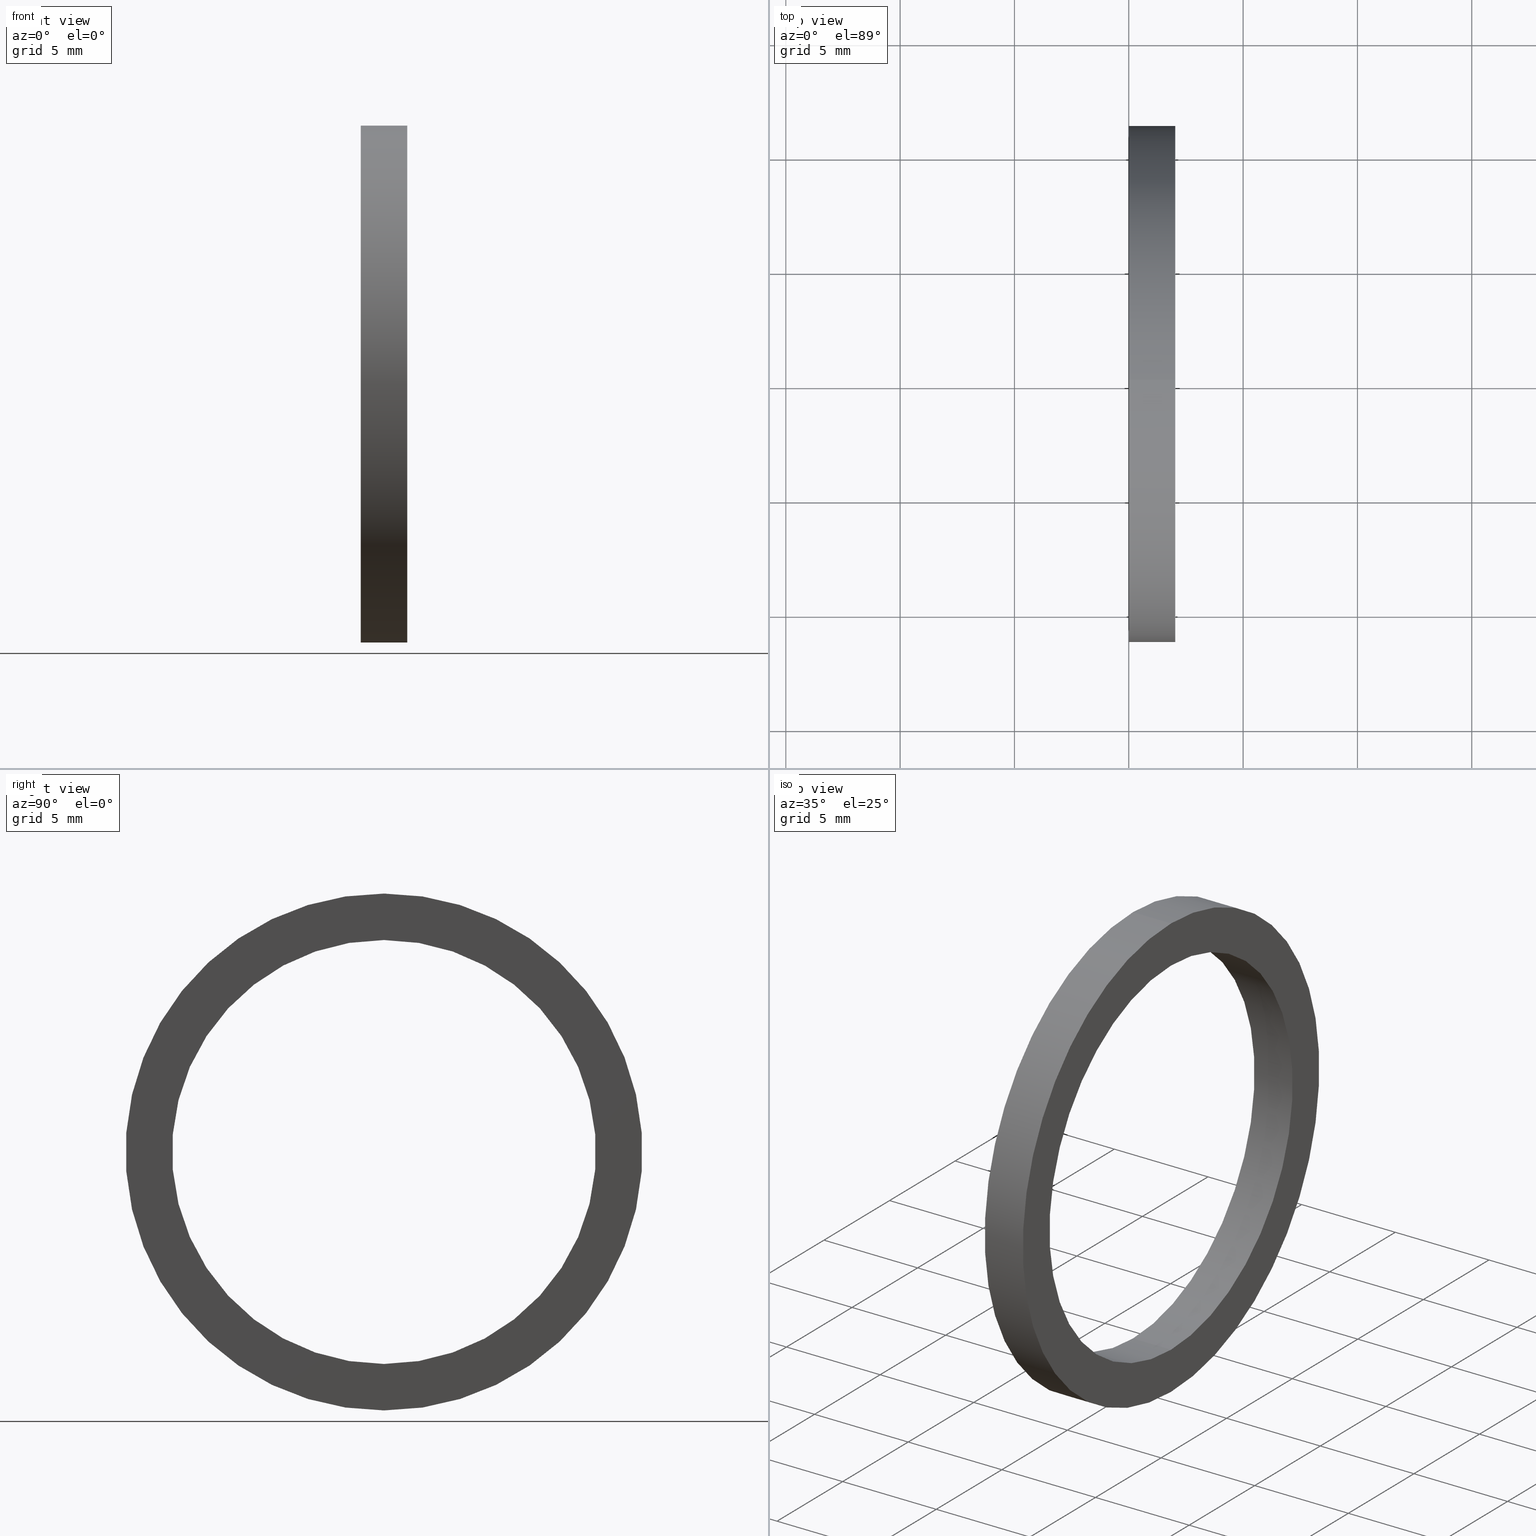
[diagram: canonical four-view strip — front | top / right | iso, engineering-drawing reading convention]
A machine part, canonical four-view strip (front | top / right | iso — engineering-drawing reading convention). The complete STEP part file that produces these views, byte-faithful:
ISO-10303-21;
HEADER;
FILE_DESCRIPTION (( 'STEP AP203' ),
    '1' );
FILE_NAME ('SR-11-VT.STEP',
    '2008-06-24T12:01:24',
    ( 'BSI05' ),
    ( 'BAYSTATE' ),
    'SwSTEP 2.0',
    'SolidWorks 2007',
    '' );
FILE_SCHEMA (( 'CONFIG_CONTROL_DESIGN' ));
ENDSEC;

DATA;
#1 = FACE_OUTER_BOUND ( 'NONE', #134, .T. ) ;
#2 = DIRECTION ( 'NONE',  ( 0.0000000000000000000, 0.0000000000000000000, 1.000000000000000000 ) ) ;
#3 = DIRECTION ( 'NONE',  ( -1.000000000000000000, 0.0000000000000000000, 0.0000000000000000000 ) ) ;
#4 = AXIS2_PLACEMENT_3D ( 'NONE', #6, #3, #2 ) ;
#5 = CYLINDRICAL_SURFACE ( 'NONE', #4, 0.3649999999999999900 ) ;
#6 = CARTESIAN_POINT ( 'NONE',  ( -1.721125226614714300, 0.0000000000000000000, 0.0000000000000000000 ) ) ;
#7 = FACE_OUTER_BOUND ( 'NONE', #127, .T. ) ;
#8 = CARTESIAN_POINT ( 'NONE',  ( 0.07999999999999996000, 5.449678256205722000E-017, -0.4450000000000000100 ) ) ;
#9 = CARTESIAN_POINT ( 'NONE',  ( 0.07999999999999996000, 0.0000000000000000000, 0.4450000000000000100 ) ) ;
#10 = EDGE_CURVE ( 'NONE', #112, #111, #75, .T. ) ;
#11 = ORIENTED_EDGE ( 'NONE', *, *, #17, .T. ) ;
#12 = ORIENTED_EDGE ( 'NONE', *, *, #141, .T. ) ;
#13 = ORIENTED_EDGE ( 'NONE', *, *, #107, .F. ) ;
#14 = ORIENTED_EDGE ( 'NONE', *, *, #107, .T. ) ;
#15 = VERTEX_POINT ( 'NONE', #70 ) ;
#16 = ORIENTED_EDGE ( 'NONE', *, *, #54, .T. ) ;
#17 = EDGE_CURVE ( 'NONE', #112, #52, #69, .T. ) ;
#18 = ORIENTED_EDGE ( 'NONE', *, *, #54, .F. ) ;
#19 = ORIENTED_EDGE ( 'NONE', *, *, #61, .F. ) ;
#20 = DIRECTION ( 'NONE',  ( 0.0000000000000000000, 0.0000000000000000000, 1.000000000000000000 ) ) ;
#21 = DIRECTION ( 'NONE',  ( -1.000000000000000000, 0.0000000000000000000, 0.0000000000000000000 ) ) ;
#22 = CARTESIAN_POINT ( 'NONE',  ( 0.0000000000000000000, 0.0000000000000000000, 0.0000000000000000000 ) ) ;
#23 = AXIS2_PLACEMENT_3D ( 'NONE', #22, #21, #20 ) ;
#24 = CIRCLE ( 'NONE', #23, 0.3649999999999999900 ) ;
#25 = DIRECTION ( 'NONE',  ( 0.0000000000000000000, 0.0000000000000000000, 1.000000000000000000 ) ) ;
#26 = DIRECTION ( 'NONE',  ( -1.000000000000000000, 0.0000000000000000000, 0.0000000000000000000 ) ) ;
#27 = CARTESIAN_POINT ( 'NONE',  ( -1.721125226614714300, 0.0000000000000000000, 0.0000000000000000000 ) ) ;
#28 = AXIS2_PLACEMENT_3D ( 'NONE', #27, #26, #25 ) ;
#29 = CYLINDRICAL_SURFACE ( 'NONE', #28, 0.4450000000000000100 ) ;
#30 = FACE_OUTER_BOUND ( 'NONE', #76, .T. ) ;
#31 = DIRECTION ( 'NONE',  ( -1.000000000000000000, 0.0000000000000000000, 0.0000000000000000000 ) ) ;
#32 = VECTOR ( 'NONE', #31, 39.37007874015748100 ) ;
#33 = CARTESIAN_POINT ( 'NONE',  ( -1.721125226614714300, 0.0000000000000000000, 0.3649999999999999900 ) ) ;
#34 = DIRECTION ( 'NONE',  ( 0.0000000000000000000, 0.0000000000000000000, 1.000000000000000000 ) ) ;
#35 = DIRECTION ( 'NONE',  ( -1.000000000000000000, 0.0000000000000000000, 0.0000000000000000000 ) ) ;
#36 = AXIS2_PLACEMENT_3D ( 'NONE', #37, #35, #34 ) ;
#37 = CARTESIAN_POINT ( 'NONE',  ( 0.0000000000000000000, 0.0000000000000000000, 0.0000000000000000000 ) ) ;
#38 = CIRCLE ( 'NONE', #36, 0.3649999999999999900 ) ;
#39 = LINE ( 'NONE', #33, #32 ) ;
#40 = DIRECTION ( 'NONE',  ( 0.0000000000000000000, 0.0000000000000000000, 1.000000000000000000 ) ) ;
#41 = DIRECTION ( 'NONE',  ( -1.000000000000000000, 0.0000000000000000000, 0.0000000000000000000 ) ) ;
#42 = CARTESIAN_POINT ( 'NONE',  ( 0.0000000000000000000, 0.0000000000000000000, 0.0000000000000000000 ) ) ;
#43 = AXIS2_PLACEMENT_3D ( 'NONE', #42, #41, #40 ) ;
#44 = CIRCLE ( 'NONE', #43, 0.4450000000000000100 ) ;
#45 = DIRECTION ( 'NONE',  ( 0.0000000000000000000, 0.0000000000000000000, 1.000000000000000000 ) ) ;
#46 = DIRECTION ( 'NONE',  ( -1.000000000000000000, 0.0000000000000000000, 0.0000000000000000000 ) ) ;
#47 = CARTESIAN_POINT ( 'NONE',  ( -1.721125226614714300, 0.0000000000000000000, 0.0000000000000000000 ) ) ;
#48 = EDGE_LOOP ( 'NONE', ( #16, #14 ) ) ;
#49 = ADVANCED_FACE ( 'NONE', ( #65 ), #62, .T. ) ;
#50 = EDGE_LOOP ( 'NONE', ( #51, #57, #12, #13 ) ) ;
#51 = ORIENTED_EDGE ( 'NONE', *, *, #17, .F. ) ;
#52 = VERTEX_POINT ( 'NONE', #63 ) ;
#53 = ORIENTED_EDGE ( 'NONE', *, *, #141, .F. ) ;
#54 = EDGE_CURVE ( 'NONE', #15, #52, #44, .T. ) ;
#55 = ORIENTED_EDGE ( 'NONE', *, *, #56, .F. ) ;
#56 = EDGE_CURVE ( 'NONE', #78, #80, #38, .T. ) ;
#57 = ORIENTED_EDGE ( 'NONE', *, *, #10, .T. ) ;
#58 = EDGE_CURVE ( 'NONE', #82, #78, #39, .T. ) ;
#59 = ORIENTED_EDGE ( 'NONE', *, *, #58, .F. ) ;
#60 = ADVANCED_FACE ( 'NONE', ( #30 ), #29, .T. ) ;
#61 = EDGE_CURVE ( 'NONE', #80, #78, #24, .T. ) ;
#62 = CYLINDRICAL_SURFACE ( 'NONE', #64, 0.4450000000000000100 ) ;
#63 = CARTESIAN_POINT ( 'NONE',  ( 0.0000000000000000000, 5.449678256205722000E-017, -0.4450000000000000100 ) ) ;
#64 = AXIS2_PLACEMENT_3D ( 'NONE', #47, #46, #45 ) ;
#65 = FACE_OUTER_BOUND ( 'NONE', #50, .T. ) ;
#66 = DIRECTION ( 'NONE',  ( -1.000000000000000000, 0.0000000000000000000, 0.0000000000000000000 ) ) ;
#67 = VECTOR ( 'NONE', #66, 39.37007874015748100 ) ;
#68 = CARTESIAN_POINT ( 'NONE',  ( -1.721125226614714300, 5.449678256205722000E-017, -0.4450000000000000100 ) ) ;
#69 = LINE ( 'NONE', #68, #67 ) ;
#70 = CARTESIAN_POINT ( 'NONE',  ( 0.0000000000000000000, 0.0000000000000000000, 0.4450000000000000100 ) ) ;
#71 = DIRECTION ( 'NONE',  ( 0.0000000000000000000, 0.0000000000000000000, 1.000000000000000000 ) ) ;
#72 = DIRECTION ( 'NONE',  ( -1.000000000000000000, 0.0000000000000000000, 0.0000000000000000000 ) ) ;
#73 = CARTESIAN_POINT ( 'NONE',  ( 0.07999999999999996000, 0.0000000000000000000, 0.0000000000000000000 ) ) ;
#74 = AXIS2_PLACEMENT_3D ( 'NONE', #73, #72, #71 ) ;
#75 = CIRCLE ( 'NONE', #74, 0.4450000000000000100 ) ;
#76 = EDGE_LOOP ( 'NONE', ( #109, #11, #18, #53 ) ) ;
#77 = ORIENTED_EDGE ( 'NONE', *, *, #61, .T. ) ;
#78 = VERTEX_POINT ( 'NONE', #105 ) ;
#79 = ORIENTED_EDGE ( 'NONE', *, *, #81, .T. ) ;
#80 = VERTEX_POINT ( 'NONE', #104 ) ;
#81 = EDGE_CURVE ( 'NONE', #84, #80, #103, .T. ) ;
#82 = VERTEX_POINT ( 'NONE', #99 ) ;
#83 = EDGE_CURVE ( 'NONE', #84, #82, #98, .T. ) ;
#84 = VERTEX_POINT ( 'NONE', #93 ) ;
#85 = ORIENTED_EDGE ( 'NONE', *, *, #83, .F. ) ;
#86 = DIRECTION ( 'NONE',  ( 0.0000000000000000000, 0.0000000000000000000, 1.000000000000000000 ) ) ;
#87 = DIRECTION ( 'NONE',  ( -1.000000000000000000, 0.0000000000000000000, 0.0000000000000000000 ) ) ;
#88 = CARTESIAN_POINT ( 'NONE',  ( 1.285836671513496700E-017, -0.3649999999999999900, 0.0000000000000000000 ) ) ;
#89 = AXIS2_PLACEMENT_3D ( 'NONE', #88, #87, #86 ) ;
#90 = PLANE ( 'NONE',  #89 ) ;
#91 = FACE_BOUND ( 'NONE', #108, .T. ) ;
#92 = FACE_OUTER_BOUND ( 'NONE', #48, .T. ) ;
#93 = CARTESIAN_POINT ( 'NONE',  ( 0.07999999999999996000, 4.469960816887839200E-017, -0.3649999999999999900 ) ) ;
#94 = DIRECTION ( 'NONE',  ( 0.0000000000000000000, 0.0000000000000000000, 1.000000000000000000 ) ) ;
#95 = DIRECTION ( 'NONE',  ( -1.000000000000000000, 0.0000000000000000000, 0.0000000000000000000 ) ) ;
#96 = CARTESIAN_POINT ( 'NONE',  ( 0.07999999999999996000, 0.0000000000000000000, 0.0000000000000000000 ) ) ;
#97 = AXIS2_PLACEMENT_3D ( 'NONE', #96, #95, #94 ) ;
#98 = CIRCLE ( 'NONE', #97, 0.3649999999999999900 ) ;
#99 = CARTESIAN_POINT ( 'NONE',  ( 0.07999999999999996000, 0.0000000000000000000, 0.3649999999999999900 ) ) ;
#100 = DIRECTION ( 'NONE',  ( -1.000000000000000000, 0.0000000000000000000, 0.0000000000000000000 ) ) ;
#101 = VECTOR ( 'NONE', #100, 39.37007874015748100 ) ;
#102 = CARTESIAN_POINT ( 'NONE',  ( -1.721125226614714300, 4.469960816887839200E-017, -0.3649999999999999900 ) ) ;
#103 = LINE ( 'NONE', #102, #101 ) ;
#104 = CARTESIAN_POINT ( 'NONE',  ( 0.0000000000000000000, 4.469960816887839200E-017, -0.3649999999999999900 ) ) ;
#105 = CARTESIAN_POINT ( 'NONE',  ( 0.0000000000000000000, 0.0000000000000000000, 0.3649999999999999900 ) ) ;
#106 = ADVANCED_FACE ( 'NONE', ( #92, #91 ), #90, .T. ) ;
#107 = EDGE_CURVE ( 'NONE', #52, #15, #121, .T. ) ;
#108 = EDGE_LOOP ( 'NONE', ( #55, #19 ) ) ;
#109 = ORIENTED_EDGE ( 'NONE', *, *, #110, .T. ) ;
#110 = EDGE_CURVE ( 'NONE', #111, #112, #116, .T. ) ;
#111 = VERTEX_POINT ( 'NONE', #9 ) ;
#112 = VERTEX_POINT ( 'NONE', #8 ) ;
#113 = DIRECTION ( 'NONE',  ( 0.0000000000000000000, 0.0000000000000000000, 1.000000000000000000 ) ) ;
#114 = DIRECTION ( 'NONE',  ( -1.000000000000000000, 0.0000000000000000000, 0.0000000000000000000 ) ) ;
#115 = AXIS2_PLACEMENT_3D ( 'NONE', #122, #114, #113 ) ;
#116 = CIRCLE ( 'NONE', #115, 0.4450000000000000100 ) ;
#117 = DIRECTION ( 'NONE',  ( 0.0000000000000000000, 0.0000000000000000000, 1.000000000000000000 ) ) ;
#118 = DIRECTION ( 'NONE',  ( -1.000000000000000000, 0.0000000000000000000, 0.0000000000000000000 ) ) ;
#119 = CARTESIAN_POINT ( 'NONE',  ( 0.0000000000000000000, 0.0000000000000000000, 0.0000000000000000000 ) ) ;
#120 = AXIS2_PLACEMENT_3D ( 'NONE', #119, #118, #117 ) ;
#121 = CIRCLE ( 'NONE', #120, 0.4450000000000000100 ) ;
#122 = CARTESIAN_POINT ( 'NONE',  ( 0.07999999999999996000, 0.0000000000000000000, 0.0000000000000000000 ) ) ;
#123 = ORIENTED_EDGE ( 'NONE', *, *, #56, .T. ) ;
#124 = ORIENTED_EDGE ( 'NONE', *, *, #110, .F. ) ;
#125 = ORIENTED_EDGE ( 'NONE', *, *, #10, .F. ) ;
#126 = CLOSED_SHELL ( 'NONE', ( #136, #60, #106, #49, #138, #129 ) ) ;
#127 = EDGE_LOOP ( 'NONE', ( #132, #128, #133, #123 ) ) ;
#128 = ORIENTED_EDGE ( 'NONE', *, *, #139, .F. ) ;
#129 = ADVANCED_FACE ( 'NONE', ( #7 ), #5, .F. ) ;
#130 = ORIENTED_EDGE ( 'NONE', *, *, #83, .T. ) ;
#131 = EDGE_LOOP ( 'NONE', ( #124, #125 ) ) ;
#132 = ORIENTED_EDGE ( 'NONE', *, *, #81, .F. ) ;
#133 = ORIENTED_EDGE ( 'NONE', *, *, #58, .T. ) ;
#134 = EDGE_LOOP ( 'NONE', ( #85, #79, #77, #59 ) ) ;
#135 = MANIFOLD_SOLID_BREP ( 'NONE', #126 ) ;
#136 = ADVANCED_FACE ( 'NONE', ( #1 ), #250, .F. ) ;
#137 = EDGE_LOOP ( 'NONE', ( #140, #130 ) ) ;
#138 = ADVANCED_FACE ( 'NONE', ( #249, #238 ), #252, .T. ) ;
#139 = EDGE_CURVE ( 'NONE', #82, #84, #144, .T. ) ;
#140 = ORIENTED_EDGE ( 'NONE', *, *, #139, .T. ) ;
#141 = EDGE_CURVE ( 'NONE', #111, #15, #164, .T. ) ;
#142 = UNCERTAINTY_MEASURE_WITH_UNIT (LENGTH_MEASURE( 1.000000000000000100E-005 ), #243, 'distance_accuracy_value', 'NONE');
#143 =( NAMED_UNIT ( * ) SI_UNIT ( $, .STERADIAN. ) SOLID_ANGLE_UNIT ( ) );
#144 = CIRCLE ( 'NONE', #155, 0.3649999999999999900 ) ;
#145 = DIMENSIONAL_EXPONENTS ( 1.000000000000000000, 0.0000000000000000000, 0.0000000000000000000, 0.0000000000000000000, 0.0000000000000000000, 0.0000000000000000000, 0.0000000000000000000 ) ;
#146 =( LENGTH_UNIT ( ) NAMED_UNIT ( * ) SI_UNIT ( $, .METRE. ) );
#147 = DIRECTION ( 'NONE',  ( 1.000000000000000000, 0.0000000000000000000, 0.0000000000000000000 ) ) ;
#148 = CARTESIAN_POINT ( 'NONE',  ( 0.08000000000000000200, -0.3649999999999999900, 0.0000000000000000000 ) ) ;
#149 = DIRECTION ( 'NONE',  ( 0.0000000000000000000, 0.0000000000000000000, 1.000000000000000000 ) ) ;
#150 = ADVANCED_BREP_SHAPE_REPRESENTATION ( 'SR-11-VT', ( #135, #241 ), #151 ) ;
#151 =( GEOMETRIC_REPRESENTATION_CONTEXT ( 3 ) GLOBAL_UNCERTAINTY_ASSIGNED_CONTEXT ( ( #142 ) ) GLOBAL_UNIT_ASSIGNED_CONTEXT ( ( #243, #159, #143 ) ) REPRESENTATION_CONTEXT ( 'NONE', 'WORKASPACE' ) );
#152 = CARTESIAN_POINT ( 'NONE',  ( -1.721125226614714300, 0.0000000000000000000, 0.0000000000000000000 ) ) ;
#153 = DIRECTION ( 'NONE',  ( -1.000000000000000000, 0.0000000000000000000, 0.0000000000000000000 ) ) ;
#154 = CARTESIAN_POINT ( 'NONE',  ( 0.07999999999999996000, 0.0000000000000000000, 0.0000000000000000000 ) ) ;
#155 = AXIS2_PLACEMENT_3D ( 'NONE', #154, #153, #160 ) ;
#156 = DIRECTION ( 'NONE',  ( 0.0000000000000000000, 0.0000000000000000000, -1.000000000000000000 ) ) ;
#157 = DIRECTION ( 'NONE',  ( 1.000000000000000000, 0.0000000000000000000, 0.0000000000000000000 ) ) ;
#158 = AXIS2_PLACEMENT_3D ( 'NONE', #152, #245, #149 ) ;
#159 =( NAMED_UNIT ( * ) PLANE_ANGLE_UNIT ( ) SI_UNIT ( $, .RADIAN. ) );
#160 = DIRECTION ( 'NONE',  ( 0.0000000000000000000, 0.0000000000000000000, 1.000000000000000000 ) ) ;
#161 = DIRECTION ( 'NONE',  ( -1.000000000000000000, 0.0000000000000000000, 0.0000000000000000000 ) ) ;
#162 = VECTOR ( 'NONE', #161, 39.37007874015748100 ) ;
#163 = CARTESIAN_POINT ( 'NONE',  ( -1.721125226614714300, 0.0000000000000000000, 0.4450000000000000100 ) ) ;
#164 = LINE ( 'NONE', #163, #162 ) ;
#165 = DATE_AND_TIME ( #166, #167 ) ;
#166 = CALENDAR_DATE ( 2008, 24, 6 ) ;
#167 = LOCAL_TIME ( 17, 31, 24.00000000000000000, #168 ) ;
#168 = COORDINATED_UNIVERSAL_TIME_OFFSET ( 5, 30, .AHEAD. ) ;
#169 = CC_DESIGN_PERSON_AND_ORGANIZATION_ASSIGNMENT ( #171, #170, ( #172 ) ) ;
#170 = PERSON_AND_ORGANIZATION_ROLE ( 'classification_officer' ) ;
#171 = PERSON_AND_ORGANIZATION ( #236, #235 ) ;
#172 = SECURITY_CLASSIFICATION ( '', '', #173 ) ;
#173 = SECURITY_CLASSIFICATION_LEVEL ( 'unclassified' ) ;
#174 = CC_DESIGN_PERSON_AND_ORGANIZATION_ASSIGNMENT ( #176, #175, ( #191 ) ) ;
#175 = PERSON_AND_ORGANIZATION_ROLE ( 'design_supplier' ) ;
#176 = PERSON_AND_ORGANIZATION ( #236, #235 ) ;
#177 = CC_DESIGN_PERSON_AND_ORGANIZATION_ASSIGNMENT ( #179, #178, ( #191 ) ) ;
#178 = PERSON_AND_ORGANIZATION_ROLE ( 'creator' ) ;
#179 = PERSON_AND_ORGANIZATION ( #236, #235 ) ;
#180 = CC_DESIGN_APPROVAL ( #188, ( #191 ) ) ;
#181 = APPROVAL_DATE_TIME ( #182, #188 ) ;
#182 = DATE_AND_TIME ( #183, #184 ) ;
#183 = CALENDAR_DATE ( 2008, 24, 6 ) ;
#184 = LOCAL_TIME ( 17, 31, 24.00000000000000000, #185 ) ;
#185 = COORDINATED_UNIVERSAL_TIME_OFFSET ( 5, 30, .AHEAD. ) ;
#186 = APPROVAL_PERSON_ORGANIZATION ( #190, #188, #187 ) ;
#187 = APPROVAL_ROLE ( '' ) ;
#188 = APPROVAL ( #189, 'UNSPECIFIED' ) ;
#189 = APPROVAL_STATUS ( 'not_yet_approved' ) ;
#190 = PERSON_AND_ORGANIZATION ( #236, #235 ) ;
#191 = PRODUCT_DEFINITION_FORMATION_WITH_SPECIFIED_SOURCE ( 'ANY', '', #237, .NOT_KNOWN. ) ;
#192 = CC_DESIGN_DATE_AND_TIME_ASSIGNMENT ( #194, #193, ( #228 ) ) ;
#193 = DATE_TIME_ROLE ( 'creation_date' ) ;
#194 = DATE_AND_TIME ( #195, #196 ) ;
#195 = CALENDAR_DATE ( 2008, 24, 6 ) ;
#196 = LOCAL_TIME ( 17, 31, 24.00000000000000000, #197 ) ;
#197 = COORDINATED_UNIVERSAL_TIME_OFFSET ( 5, 30, .AHEAD. ) ;
#198 = CC_DESIGN_PERSON_AND_ORGANIZATION_ASSIGNMENT ( #200, #199, ( #228 ) ) ;
#199 = PERSON_AND_ORGANIZATION_ROLE ( 'creator' ) ;
#200 = PERSON_AND_ORGANIZATION ( #236, #235 ) ;
#201 = PRODUCT_DEFINITION_SHAPE ( 'NONE', 'NONE',  #228 ) ;
#202 = PRODUCT_RELATED_PRODUCT_CATEGORY ( 'detail', '', ( #237 ) ) ;
#203 = CC_DESIGN_SECURITY_CLASSIFICATION ( #172, ( #191 ) ) ;
#204 = CC_DESIGN_APPROVAL ( #212, ( #172 ) ) ;
#205 = APPROVAL_DATE_TIME ( #206, #212 ) ;
#206 = DATE_AND_TIME ( #207, #208 ) ;
#207 = CALENDAR_DATE ( 2008, 24, 6 ) ;
#208 = LOCAL_TIME ( 17, 31, 24.00000000000000000, #209 ) ;
#209 = COORDINATED_UNIVERSAL_TIME_OFFSET ( 5, 30, .AHEAD. ) ;
#210 = APPROVAL_PERSON_ORGANIZATION ( #214, #212, #211 ) ;
#211 = APPROVAL_ROLE ( '' ) ;
#212 = APPROVAL ( #213, 'UNSPECIFIED' ) ;
#213 = APPROVAL_STATUS ( 'not_yet_approved' ) ;
#214 = PERSON_AND_ORGANIZATION ( #236, #235 ) ;
#215 = CC_DESIGN_DATE_AND_TIME_ASSIGNMENT ( #165, #216, ( #172 ) ) ;
#216 = DATE_TIME_ROLE ( 'classification_date' ) ;
#217 = CC_DESIGN_APPROVAL ( #225, ( #228 ) ) ;
#218 = APPROVAL_DATE_TIME ( #219, #225 ) ;
#219 = DATE_AND_TIME ( #220, #221 ) ;
#220 = CALENDAR_DATE ( 2008, 24, 6 ) ;
#221 = LOCAL_TIME ( 17, 31, 24.00000000000000000, #222 ) ;
#222 = COORDINATED_UNIVERSAL_TIME_OFFSET ( 5, 30, .AHEAD. ) ;
#223 = APPROVAL_PERSON_ORGANIZATION ( #227, #225, #224 ) ;
#224 = APPROVAL_ROLE ( '' ) ;
#225 = APPROVAL ( #226, 'UNSPECIFIED' ) ;
#226 = APPROVAL_STATUS ( 'not_yet_approved' ) ;
#227 = PERSON_AND_ORGANIZATION ( #236, #235 ) ;
#228 = PRODUCT_DEFINITION ( 'UNKNOWN', '', #191, #229 ) ;
#229 = DESIGN_CONTEXT ( 'detailed design', #231, 'design' ) ;
#230 = APPLICATION_PROTOCOL_DEFINITION ( 'international standard', 'config_control_design', 1994, #231 ) ;
#231 = APPLICATION_CONTEXT ( 'configuration controlled 3d designs of mechanical parts and assemblies' ) ;
#232 = CC_DESIGN_PERSON_AND_ORGANIZATION_ASSIGNMENT ( #234, #233, ( #237 ) ) ;
#233 = PERSON_AND_ORGANIZATION_ROLE ( 'design_owner' ) ;
#234 = PERSON_AND_ORGANIZATION ( #236, #235 ) ;
#235 = ORGANIZATION ( 'UNSPECIFIED', 'UNSPECIFIED', '' ) ;
#236 = PERSON ( 'UNSPECIFIED', 'UNSPECIFIED', 'UNSPECIFIED', ('UNSPECIFIED'), ('UNSPECIFIED'), ('UNSPECIFIED') ) ;
#237 = PRODUCT ( 'SR-11-VT', 'SR-11-VT', '', ( #246 ) ) ;
#238 = FACE_OUTER_BOUND ( 'NONE', #131, .T. ) ;
#239 = CARTESIAN_POINT ( 'NONE',  ( 0.0000000000000000000, 0.0000000000000000000, 0.0000000000000000000 ) ) ;
#240 = DIRECTION ( 'NONE',  ( 0.0000000000000000000, 0.0000000000000000000, 1.000000000000000000 ) ) ;
#241 = AXIS2_PLACEMENT_3D ( 'NONE', #239, #240, #157 ) ;
#242 = SHAPE_DEFINITION_REPRESENTATION ( #201, #150 ) ;
#243 =( CONVERSION_BASED_UNIT ( 'INCH', #244 ) LENGTH_UNIT ( ) NAMED_UNIT ( #145 ) );
#244 = LENGTH_MEASURE_WITH_UNIT ( LENGTH_MEASURE( 0.02539999999999999900 ), #146 );
#245 = DIRECTION ( 'NONE',  ( -1.000000000000000000, 0.0000000000000000000, 0.0000000000000000000 ) ) ;
#246 = MECHANICAL_CONTEXT ( 'NONE', #248, 'mechanical' ) ;
#247 = APPLICATION_PROTOCOL_DEFINITION ( 'international standard', 'config_control_design', 1994, #248 ) ;
#248 = APPLICATION_CONTEXT ( 'configuration controlled 3d designs of mechanical parts and assemblies' ) ;
#249 = FACE_BOUND ( 'NONE', #137, .T. ) ;
#250 = CYLINDRICAL_SURFACE ( 'NONE', #158, 0.3649999999999999900 ) ;
#251 = AXIS2_PLACEMENT_3D ( 'NONE', #148, #147, #156 ) ;
#252 = PLANE ( 'NONE',  #251 ) ;
ENDSEC;
END-ISO-10303-21;
